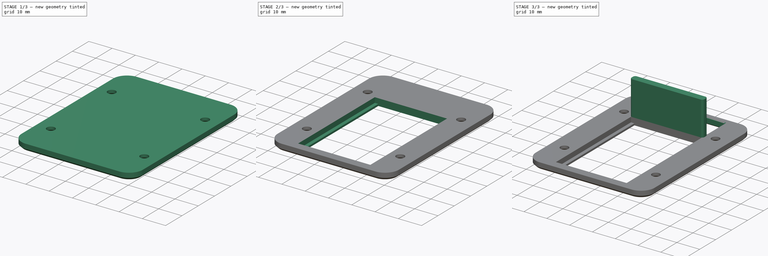
[diagram: build sequence overview — one tinted view per stage of 3, left to right]
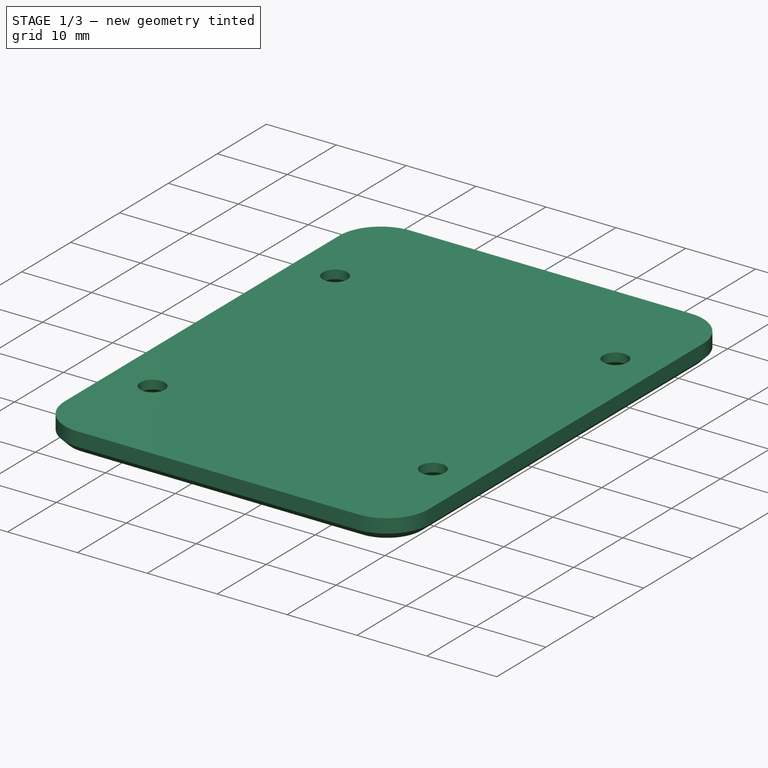
[diagram: stage 1 of 3 — iso view after this stage's code; geometry added in this stage tinted green]
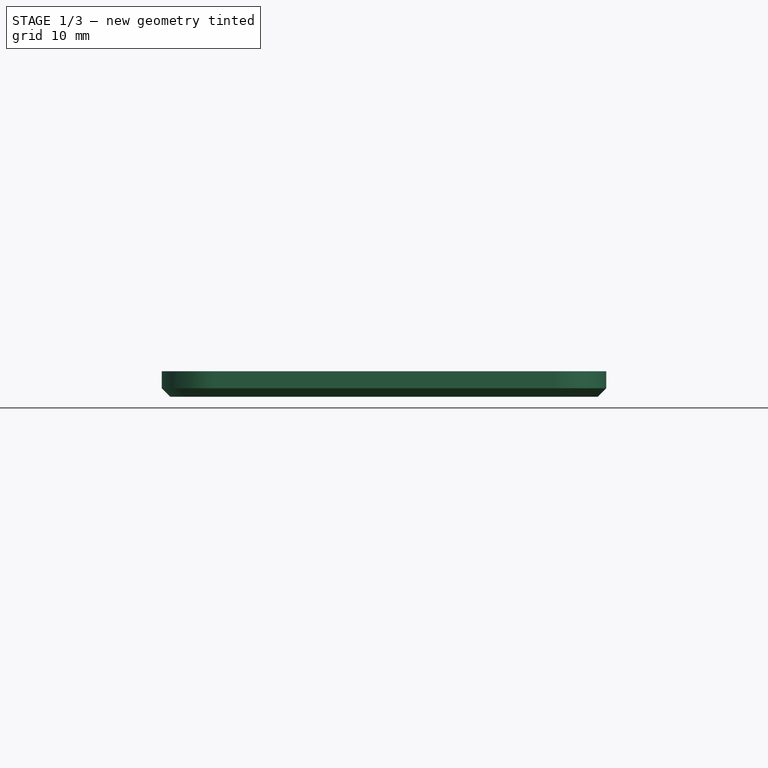
[diagram: stage 1 of 3 — front view after this stage's code; geometry added in this stage tinted green]
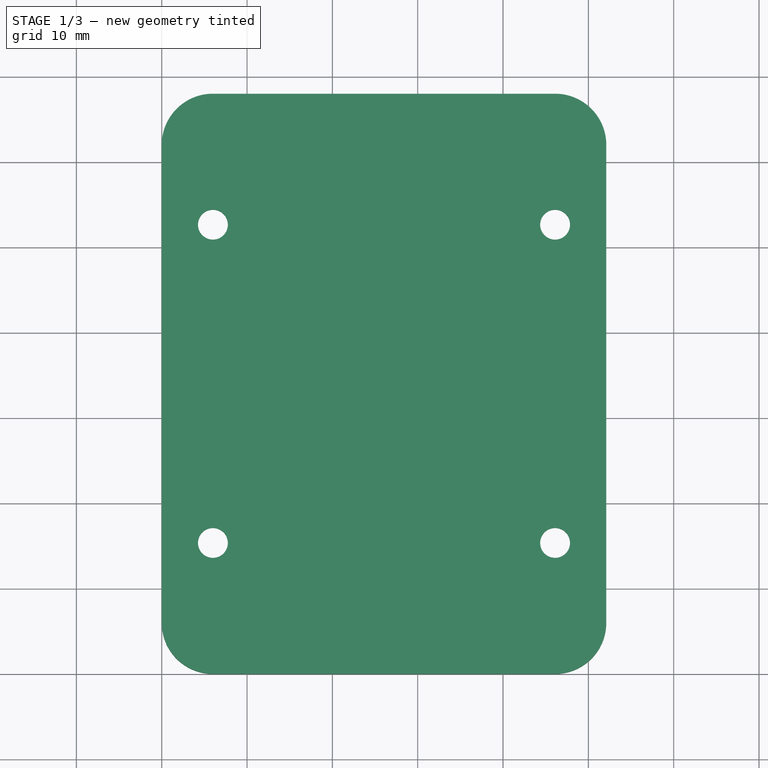
[diagram: stage 1 of 3 — top view after this stage's code; geometry added in this stage tinted green]
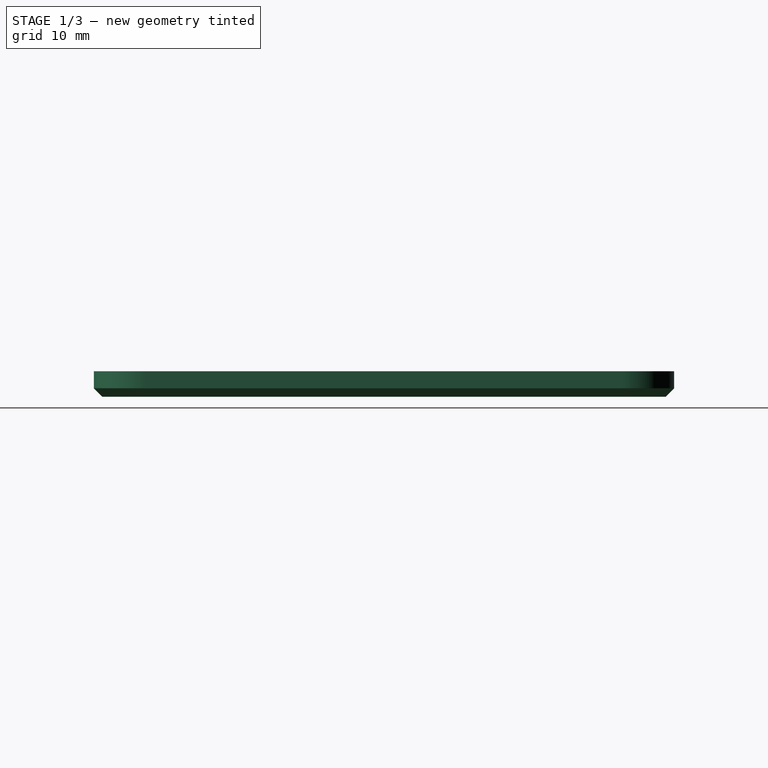
[diagram: stage 1 of 3 — right view after this stage's code; geometry added in this stage tinted green]
FCSTD DOCUMENT  (FreeCAD 1.0R39319 (Git))
Label: power_inlet_IEC320_C14
License: All rights reserved
LicenseURL: https://en.wikipedia.org/wiki/All_rights_reserved
objects: Sketcher::SketchObject×6, PartDesign::Pocket×3, PartDesign::Pad×2, PartDesign::Chamfer×2, Spreadsheet::Sheet×1, PartDesign::Plane×1, PartDesign::Hole×1, PartDesign::Body×1
note: 38 computed .brp shape members not serialized (recipe doc carries the construction recipe); baked Part::Feature solids carry a one-line shape summary decoded from their .brp

FEATURE [Spreadsheet::Sheet] Spreadsheet
  cells = A1='ATX mounting height spacing; B1(AtxMountHeiSpa)=37.3; C1='IEC inlet height; D1(IecInletHei)=47; E1='Cable hole height; F1(CableHoleHei)=12; G1='Cable hole wall thickness; H1(CableHoleWallThi)=3; A2='ATX mounting width spacing; B2(AtxMountWidSpa)=40.1; C2='IEC inlet width; D2(IecInletWid)=28; E2='Cable hole width; F2(CableHoleWid)=30; G2='Cable hole wall width; H2(CableHoleWallWid)=32; A3='ATX mounting hole diameter; B3(AtxMountHoleDia)=3.5; C3='IEC inlet keepout; D3(IecInletKeep)=1.5; E3='Cable chamfer; F3(CableHoleCha)=0.5; G3='Cable hole wall Depth; H3(CableHoleWallDep)=15; A4='ATX mounting hole chamfer; B4(AtxMountHoleCha)=7; C4='IEC inlet Plate Thickness; D4(IecInletPlateThi)=0.8; G4='Cable hole wall chamfer; H4(CableHoleWallCha)=1; A5='ATX plate wall width; B5(AtxPlateWallWid)=6; C5='IEC inlet X offset; D5(IecInletXOff)=0; E5='Cable hole X offset; F5(CableHoleXOff)=0; A6='ATX plate wall thickness; B6(AtxPlateWallThi)=3; C6='IEC inlet Y offset; D6(IecInletYOff)=-7; E6='Cable hole Y offset; F6(CableHoleYOff)=26; A7='ATX hole height; B7(AtxHoleHei)=68; A8='Plate Chamfer; B8(PlateCha)=1; A10='Calculations; A11='Total plate width; B11(TotalPlateWid)==AtxMountWidSpa + AtxPlateWallWid * 2; C11='IEC pocket height; D11(IecPocketHei)==IecInletHei; A12='Total plate height; B12(TotalPlateHei)==AtxHoleHei; C12='IEC pocket width; D12(IecPocketWid)==IecInletWid + IecInletKeep * 2; C13='IEC pocket depth; D13(IecPocketDep)==AtxPlateWallThi - IecInletPlateThi
FEATURE [Sketcher::SketchObject] Sketch
  ArcFitTolerance = 1e-06
  AttachmentSupport = -> [XY_Plane]
  FullyConstrained = true
  MakeInternals = false
  MapMode = 5
  expr: Constraints[23] = Spreadsheet.AtxPlateWallWid
  expr: Constraints[5] = Spreadsheet.TotalPlateWid
  expr: Constraints[6] = Spreadsheet.TotalPlateHei
  sketch-geometry (12):
    g0: LineSegment StartX=6 StartY=0 StartZ=0 EndX=46.1 EndY=0 EndZ=0
    g1: LineSegment StartX=52.1 StartY=6 StartZ=0 EndX=52.1 EndY=62 EndZ=0
    g2: LineSegment StartX=46.1 StartY=68 StartZ=0 EndX=6 EndY=68 EndZ=0
    g3: LineSegment StartX=0 StartY=62 StartZ=0 EndX=0 EndY=6 EndZ=0
    g4: ArcOfCircle CenterX=6 CenterY=6 CenterZ=0 NormalX=0 NormalY=0 NormalZ=1 AngleXU=0 Radius=6 StartAngle=3.14159 EndAngle=4.71239
    g5: GeomPoint [constr] X=0 Y=0 Z=0
    g6: ArcOfCircle CenterX=6 CenterY=62 CenterZ=0 NormalX=0 NormalY=0 NormalZ=1 AngleXU=0 Radius=6 StartAngle=1.5708 EndAngle=3.14159
    g7: GeomPoint [constr] X=0 Y=68 Z=0
    g8: ArcOfCircle CenterX=46.1 CenterY=62 CenterZ=0 NormalX=0 NormalY=0 NormalZ=1 AngleXU=0 Radius=6 StartAngle=0 EndAngle=1.5708
    g9: GeomPoint [constr] X=52.1 Y=68 Z=0
    g10: ArcOfCircle CenterX=46.1 CenterY=6 CenterZ=0 NormalX=0 NormalY=0 NormalZ=1 AngleXU=0 Radius=6 StartAngle=4.71239 EndAngle=6.28319
    g11: GeomPoint [constr] X=52.1 Y=0 Z=0
  constraints (27):
    c: Horizontal(g0)
    c: Horizontal(g2)
    c: Vertical(g1)
    c: Vertical(g3)
    c: Coincident(g5,g-1)
    c: DistanceX(g5,g11) = 52.1
    c: DistanceY(g5,g7) = 68
    c: PointOnObject(g5,g3)
    c: PointOnObject(g5,g0)
    c: Tangent(g3,g4) = -1.5708
    c: Tangent(g0,g4) = -1.5708
    c: PointOnObject(g7,g2)
    c: PointOnObject(g7,g3)
    c: Tangent(g2,g6) = -1.5708
    c: Tangent(g3,g6) = -1.5708
    c: PointOnObject(g9,g1)
    c: PointOnObject(g9,g2)
    c: Tangent(g1,g8) = -1.5708
    c: Tangent(g2,g8) = -1.5708
    c: PointOnObject(g11,g0)
    c: PointOnObject(g11,g1)
    c: Tangent(g0,g10) = -1.5708
    c: Tangent(g1,g10) = -1.5708
    c: DistanceY(g0,g4) = 6
    c: Vertical(g4,g6)
    c: Horizontal(g4,g10)
    c: Vertical(g10,g8)
FEATURE [PartDesign::Pad] Pad  label="MainPlate"
  Direction = (0,0,1)
  Length = 3
  Length2 = 10
  Profile = -> Sketch
  ReferenceAxis = -> Sketch [N_Axis]
  Refine = true
  Suppressed = false
  Type = 0
  expr: Length = Spreadsheet.AtxPlateWallThi
FEATURE [PartDesign::Plane] DatumPlane  label="TopPlane"
  AttachmentOffset = pos=(0,0,3) rot=(0,0,1;0rad)
  AttachmentSupport = -> [XY_Plane]
  Length = 94.0355
  MapMode = 2
  Placement = pos=(0,0,3) rot=(0,0,1;0rad)
  ResizeMode = 0
  Width = 109.936
  expr: .AttachmentOffset.Base.z = Spreadsheet.AtxPlateWallThi
FEATURE [Sketcher::SketchObject] Sketch001
  ArcFitTolerance = 1e-06
  AttachmentSupport = -> [XY_Plane]
  FullyConstrained = true
  MakeInternals = false
  MapMode = 5
  expr: Constraints[10] = Spreadsheet.TotalPlateHei / 2
  expr: Constraints[11] = Spreadsheet.AtxMountWidSpa
  expr: Constraints[12] = Spreadsheet.AtxMountHeiSpa
  expr: Constraints[9] = Spreadsheet.TotalPlateWid / 2
  sketch-geometry (9):
    g0: LineSegment [constr] StartX=46.1 StartY=15.35 StartZ=0 EndX=46.1 EndY=52.65 EndZ=0
    g1: LineSegment [constr] StartX=46.1 StartY=52.65 StartZ=0 EndX=6 EndY=52.65 EndZ=0
    g2: LineSegment [constr] StartX=6 StartY=52.65 StartZ=0 EndX=6 EndY=15.35 EndZ=0
    g3: LineSegment [constr] StartX=6 StartY=15.35 StartZ=0 EndX=46.1 EndY=15.35 EndZ=0
    g4: GeomPoint [constr] X=26.05 Y=34 Z=0
    g5: Circle CenterX=6 CenterY=52.65 CenterZ=0 NormalX=0 NormalY=0 NormalZ=1 AngleXU=0 Radius=0.5
    g6: Circle CenterX=46.1 CenterY=52.65 CenterZ=0 NormalX=0 NormalY=0 NormalZ=1 AngleXU=0 Radius=0.5
    g7: Circle CenterX=46.1 CenterY=15.35 CenterZ=0 NormalX=0 NormalY=0 NormalZ=1 AngleXU=0 Radius=0.5
    g8: Circle CenterX=6 CenterY=15.35 CenterZ=0 NormalX=0 NormalY=0 NormalZ=1 AngleXU=0 Radius=0.5
  constraints (21):
    c: Coincident(g0,g1)
    c: Coincident(g1,g2)
    c: Coincident(g2,g3)
    c: Coincident(g3,g0)
    c: Vertical(g0)
    c: Vertical(g2)
    c: Horizontal(g1)
    c: Horizontal(g3)
    c: Symmetric(g2,g0,g4)
    c: DistanceX(g-1,g4) = 26.05
    c: DistanceY(g-1,g4) = 34
    c: DistanceX(g1,g0) = 40.1
    c: DistanceY(g2,g1) = 37.3
    c: Coincident(g6,g0)
    c: Coincident(g7,g0)
    c: Coincident(g8,g2)
    c: Coincident(g5,g1)
    c: Diameter(g5) = 1
    c: Equal(g5,g6)
    c: Equal(g5,g8)
    c: Equal(g5,g7)
FEATURE [PartDesign::Hole] Hole  label="MountingHoles"
  BaseFeature = -> Pad
  CustomThreadClearance = 0
  Depth = 164.54
  DepthType = 1
  Diameter = 3.5
  DrillForDepth = false
  DrillPoint = 1
  DrillPointAngle = 118
  HoleCutCountersinkAngle = 90
  HoleCutCustomValues = false
  HoleCutDepth = 0
  HoleCutDiameter = 7
  HoleCutType = 2
  ModelThread = false
  Profile = -> Sketch001
  Refine = true
  Reversed = true
  Suppressed = false
  Tapered = false
  TaperedAngle = 90
  ThreadClass = 0
  ThreadDepth = 164.54
  ThreadDepthType = 0
  ThreadDirection = 0
  ThreadFit = 0
  ThreadSize = 0
  ThreadType = 0
  Threaded = false
  UseCustomThreadClearance = false
  expr: Diameter = Spreadsheet.AtxMountHoleDia
  expr: HoleCutDiameter = Spreadsheet.AtxMountHoleCha
FEATURE [PartDesign::Chamfer] Chamfer
  Angle = 45
  Base = -> Hole [Edge12]
  BaseFeature = -> Hole
  ChamferType = 0
  FlipDirection = false
  Refine = true
  Size = 1
  Size2 = 1
  SupportTransform = false
  Suppressed = false
  UseAllEdges = false
  expr: Size = Spreadsheet.PlateCha
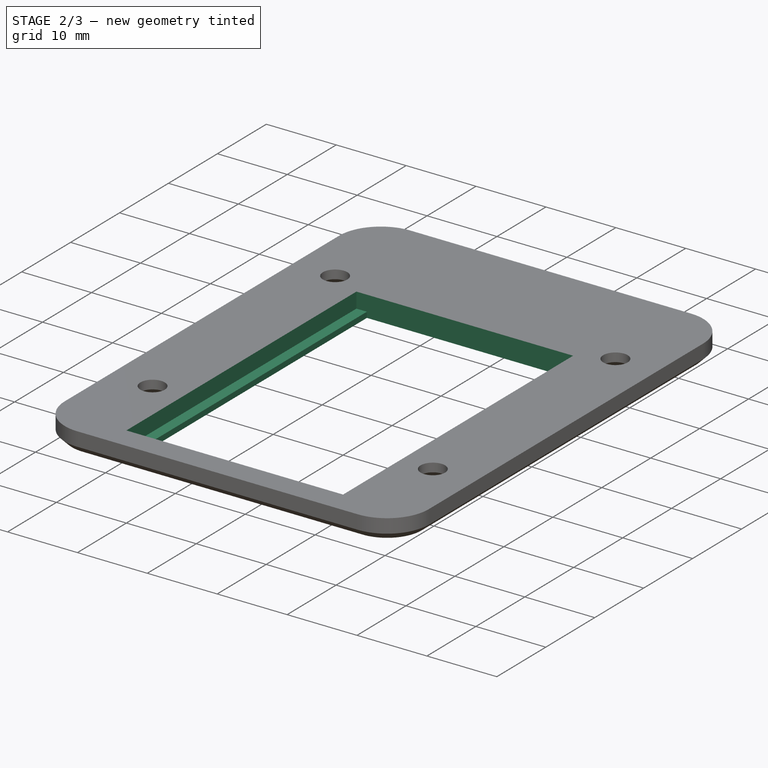
[diagram: stage 2 of 3 — iso view after this stage's code; geometry added in this stage tinted green]
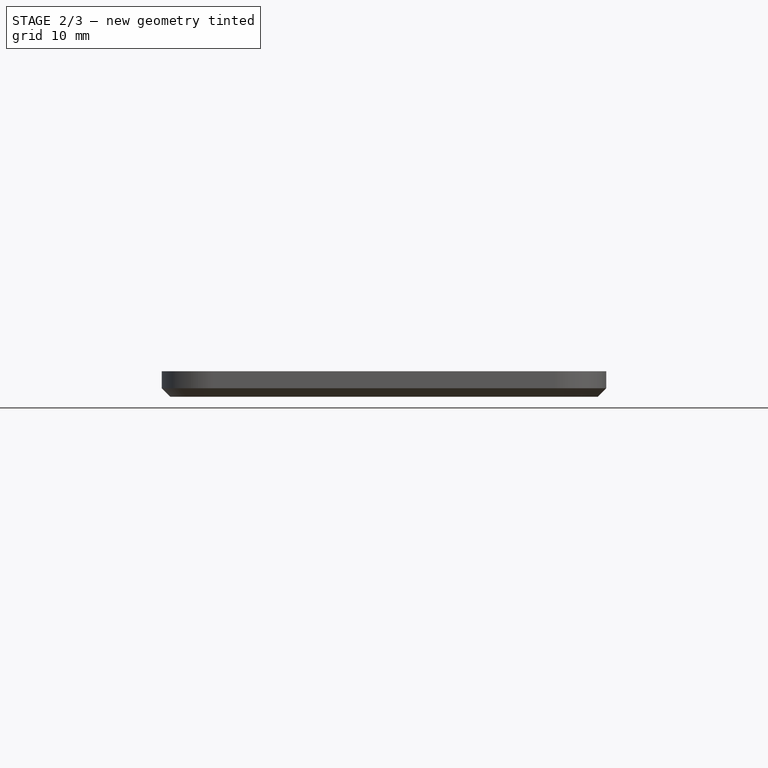
[diagram: stage 2 of 3 — front view after this stage's code; geometry added in this stage tinted green]
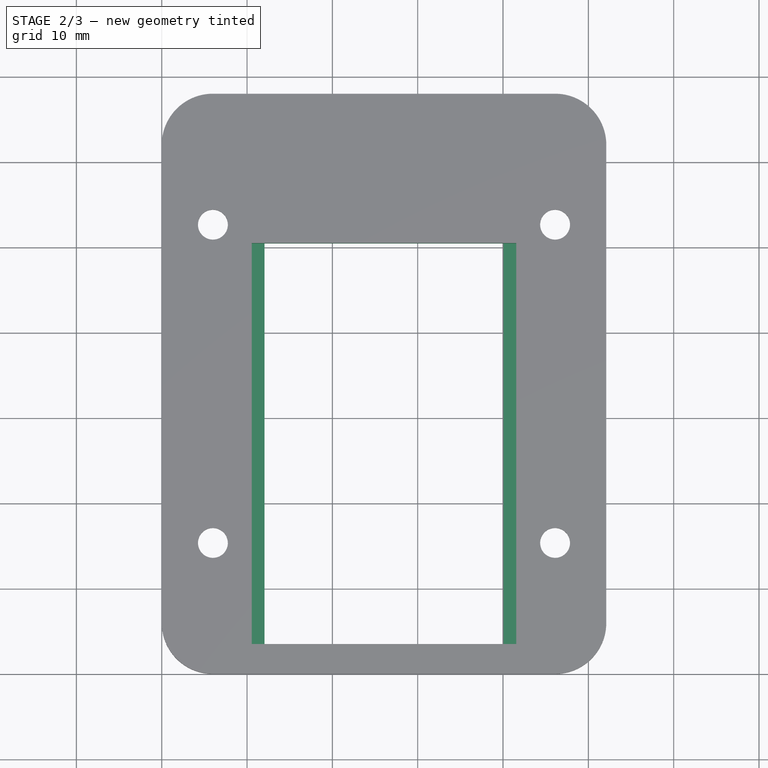
[diagram: stage 2 of 3 — top view after this stage's code; geometry added in this stage tinted green]
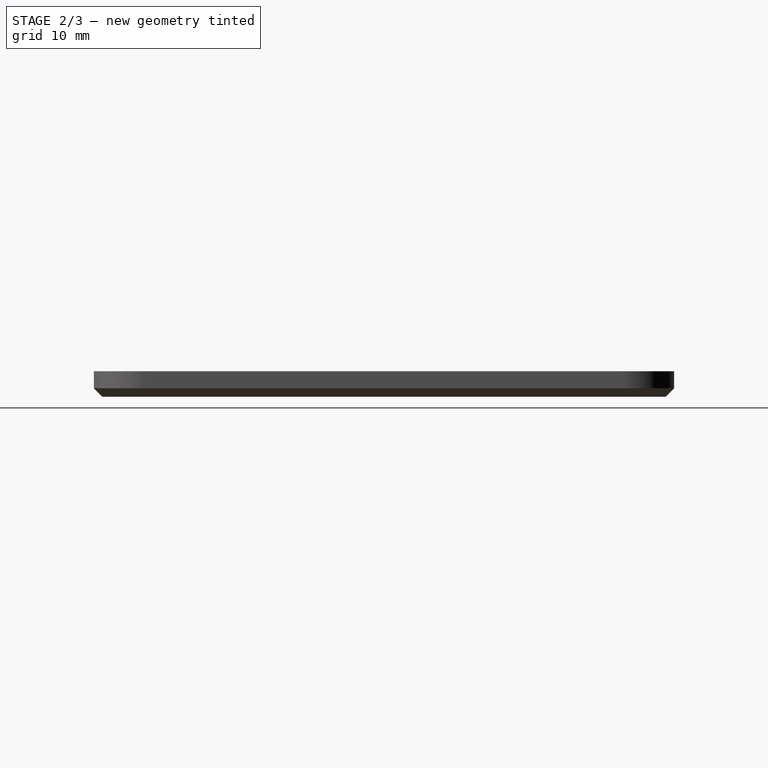
[diagram: stage 2 of 3 — right view after this stage's code; geometry added in this stage tinted green]
FEATURE [Sketcher::SketchObject] Sketch002
  ArcFitTolerance = 1e-06
  AttachmentSupport = -> [DatumPlane]
  FullyConstrained = true
  MakeInternals = false
  MapMode = 5
  Placement = pos=(0,0,3) rot=(0,0,1;0rad)
  expr: Constraints[0] = Spreadsheet.TotalPlateWid / 2
  expr: Constraints[11] = Spreadsheet.IecInletYOff
  expr: Constraints[12] = Spreadsheet.IecInletXOff
  expr: Constraints[13] = Spreadsheet.IecPocketHei
  expr: Constraints[14] = Spreadsheet.IecPocketWid
  expr: Constraints[1] = Spreadsheet.TotalPlateHei / 2
  sketch-geometry (6):
    g0: GeomPoint [constr] X=26.05 Y=34 Z=0
    g1: LineSegment StartX=10.55 StartY=3.5 StartZ=0 EndX=10.55 EndY=50.5 EndZ=0
    g2: LineSegment StartX=10.55 StartY=50.5 StartZ=0 EndX=41.55 EndY=50.5 EndZ=0
    g3: LineSegment StartX=41.55 StartY=50.5 StartZ=0 EndX=41.55 EndY=3.5 EndZ=0
    g4: LineSegment StartX=41.55 StartY=3.5 StartZ=0 EndX=10.55 EndY=3.5 EndZ=0
    g5: GeomPoint [constr] X=26.05 Y=27 Z=0
  constraints (15):
    c: DistanceX(g-1,g0) = 26.05
    c: DistanceY(g-1,g0) = 34
    c: Coincident(g1,g2)
    c: Coincident(g2,g3)
    c: Coincident(g3,g4)
    c: Coincident(g4,g1)
    c: Vertical(g1)
    c: Vertical(g3)
    c: Horizontal(g2)
    c: Horizontal(g4)
    c: Symmetric(g3,g1,g5)
    c: DistanceY(g0,g5) = -7
    c: DistanceX(g0,g5) = 0
    c: DistanceY(g1,g1) = 47
    c: DistanceX(g4,g4) = 31
FEATURE [PartDesign::Pocket] Pocket  label="IecGrabPlate"
  BaseFeature = -> Chamfer
  Direction = (0,0,-1)
  Length = 2.2
  Length2 = 5
  Profile = -> Sketch002
  ReferenceAxis = -> Sketch002 [N_Axis]
  Refine = true
  Suppressed = false
  Type = 0
  expr: Length = Spreadsheet.IecPocketDep
FEATURE [Sketcher::SketchObject] Sketch003
  ArcFitTolerance = 1e-06
  AttachmentSupport = -> [DatumPlane]
  FullyConstrained = true
  MakeInternals = false
  MapMode = 5
  Placement = pos=(0,0,3) rot=(0,0,1;0rad)
  expr: Constraints[0] = Spreadsheet.TotalPlateWid / 2
  expr: Constraints[11] = Spreadsheet.IecInletYOff
  expr: Constraints[12] = Spreadsheet.IecInletXOff
  expr: Constraints[13] = Spreadsheet.IecInletHei
  expr: Constraints[14] = Spreadsheet.IecInletWid
  expr: Constraints[1] = Spreadsheet.TotalPlateHei / 2
  sketch-geometry (6):
    g0: GeomPoint X=26.05 Y=34 Z=0
    g1: LineSegment StartX=12.05 StartY=3.5 StartZ=0 EndX=12.05 EndY=50.5 EndZ=0
    g2: LineSegment StartX=12.05 StartY=50.5 StartZ=0 EndX=40.05 EndY=50.5 EndZ=0
    g3: LineSegment StartX=40.05 StartY=50.5 StartZ=0 EndX=40.05 EndY=3.5 EndZ=0
    g4: LineSegment StartX=40.05 StartY=3.5 StartZ=0 EndX=12.05 EndY=3.5 EndZ=0
    g5: GeomPoint [constr] X=26.05 Y=27 Z=0
  constraints (15):
    c: DistanceX(g-1,g0) = 26.05
    c: DistanceY(g-1,g0) = 34
    c: Coincident(g1,g2)
    c: Coincident(g2,g3)
    c: Coincident(g3,g4)
    c: Coincident(g4,g1)
    c: Vertical(g1)
    c: Vertical(g3)
    c: Horizontal(g2)
    c: Horizontal(g4)
    c: Symmetric(g3,g1,g5)
    c: DistanceY(g0,g5) = -7
    c: DistanceX(g0,g5) = 0
    c: DistanceY(g1,g1) = 47
    c: DistanceX(g4,g4) = 28
FEATURE [PartDesign::Pocket] Pocket001  label="IecCutout"
  BaseFeature = -> Pocket
  Direction = (0,0,-1)
  Length = 5
  Length2 = 5
  Profile = -> Sketch003
  ReferenceAxis = -> Sketch003 [N_Axis]
  Refine = true
  Suppressed = false
  Type = 1
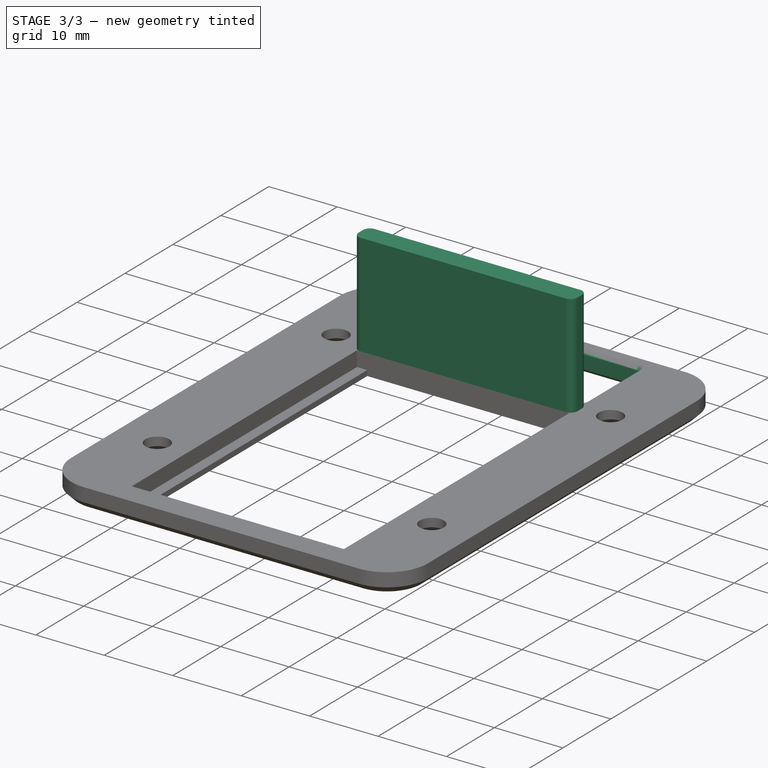
[diagram: stage 3 of 3 — iso view after this stage's code; geometry added in this stage tinted green]
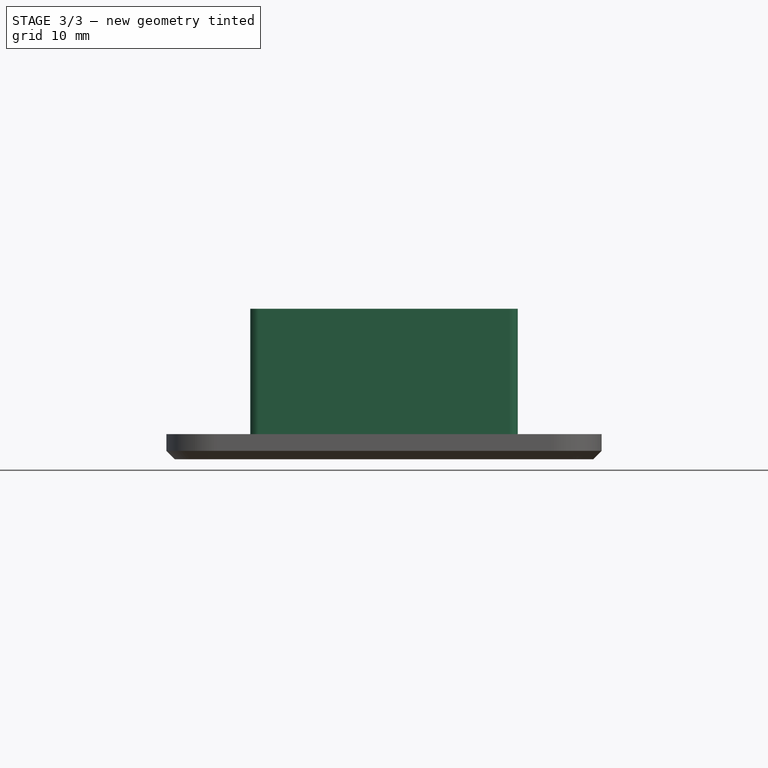
[diagram: stage 3 of 3 — front view after this stage's code; geometry added in this stage tinted green]
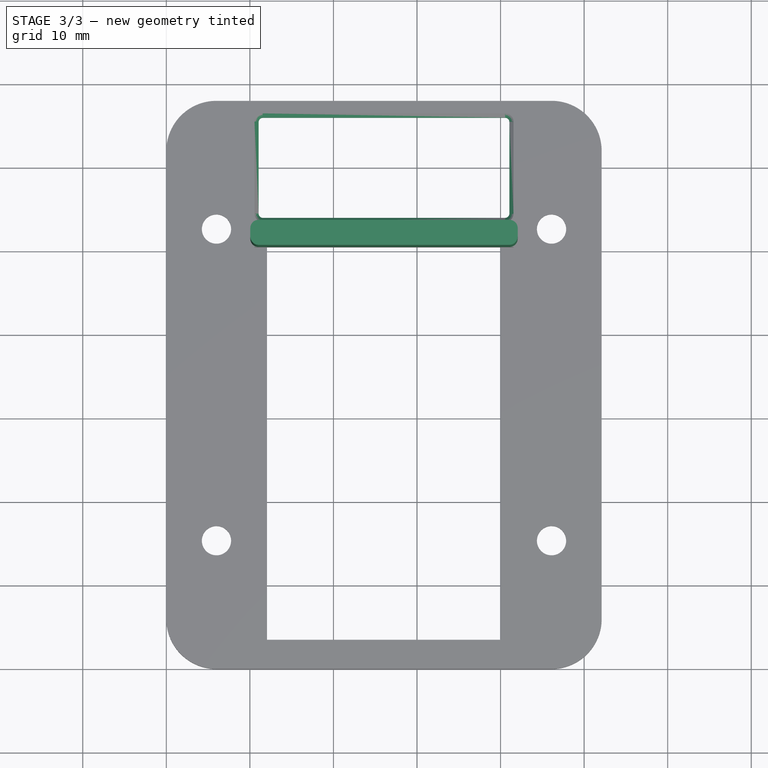
[diagram: stage 3 of 3 — top view after this stage's code; geometry added in this stage tinted green]
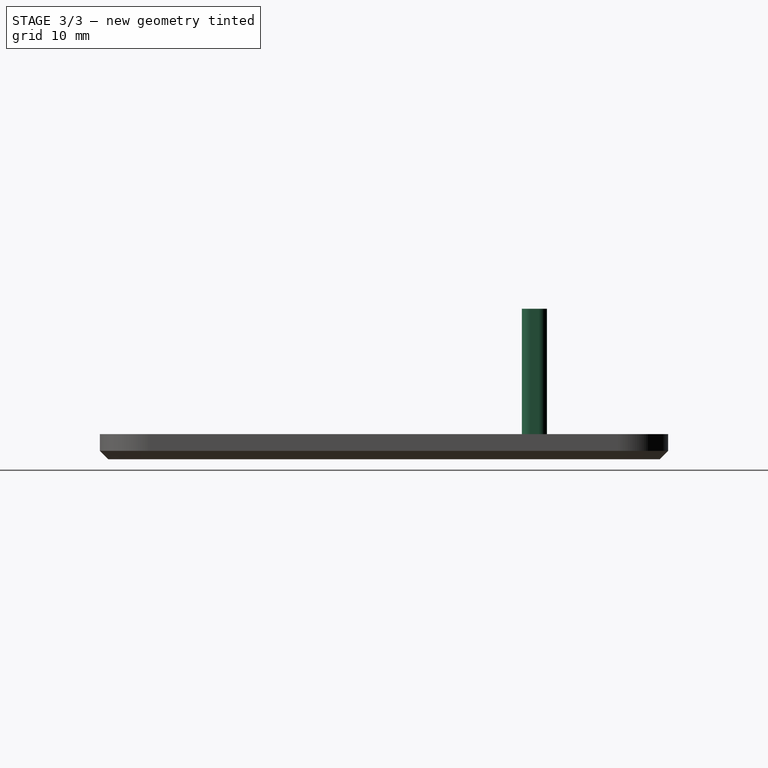
[diagram: stage 3 of 3 — right view after this stage's code; geometry added in this stage tinted green]
FEATURE [Sketcher::SketchObject] Sketch004
  ArcFitTolerance = 1e-06
  AttachmentSupport = -> [DatumPlane]
  FullyConstrained = true
  MakeInternals = false
  MapMode = 5
  Placement = pos=(0,0,3) rot=(0,0,1;0rad)
  expr: Constraints[10] = Spreadsheet.CableHoleWid
  expr: Constraints[27] = Spreadsheet.CableHoleCha
  expr: Constraints[5] = Spreadsheet.TotalPlateHei / 2
  expr: Constraints[6] = Spreadsheet.TotalPlateWid / 2
  expr: Constraints[7] = Spreadsheet.CableHoleYOff
  expr: Constraints[8] = Spreadsheet.CableHoleXOff
  expr: Constraints[9] = Spreadsheet.CableHoleHei
  sketch-geometry (14):
    g0: GeomPoint X=26.05 Y=34 Z=0
    g1: LineSegment StartX=11.05 StartY=54.5 StartZ=0 EndX=11.05 EndY=65.5 EndZ=0
    g2: LineSegment StartX=11.55 StartY=66 StartZ=0 EndX=40.55 EndY=66 EndZ=0
    g3: LineSegment StartX=41.05 StartY=65.5 StartZ=0 EndX=41.05 EndY=54.5 EndZ=0
    g4: LineSegment StartX=40.55 StartY=54 StartZ=0 EndX=11.55 EndY=54 EndZ=0
    g5: GeomPoint [constr] X=26.05 Y=60 Z=0
    g6: ArcOfCircle CenterX=11.55 CenterY=65.5 CenterZ=0 NormalX=0 NormalY=0 NormalZ=1 AngleXU=0 Radius=0.5 StartAngle=1.5708 EndAngle=3.14159
    g7: GeomPoint [constr] X=11.05 Y=66 Z=0
    g8: ArcOfCircle CenterX=40.55 CenterY=65.5 CenterZ=0 NormalX=0 NormalY=0 NormalZ=1 AngleXU=0 Radius=0.5 StartAngle=6.5e-15 EndAngle=1.5708
    g9: GeomPoint [constr] X=41.05 Y=66 Z=0
    g10: ArcOfCircle CenterX=40.55 CenterY=54.5 CenterZ=0 NormalX=0 NormalY=0 NormalZ=1 AngleXU=0 Radius=0.5 StartAngle=4.71239 EndAngle=6.28319
    g11: GeomPoint [constr] X=41.05 Y=54 Z=0
    g12: ArcOfCircle CenterX=11.55 CenterY=54.5 CenterZ=0 NormalX=0 NormalY=0 NormalZ=1 AngleXU=0 Radius=0.5 StartAngle=3.14159 EndAngle=4.71239
    g13: GeomPoint [constr] X=11.05 Y=54 Z=0
  constraints (31):
    c: Vertical(g1)
    c: Vertical(g3)
    c: Horizontal(g2)
    c: Horizontal(g4)
    c: Symmetric(g9,g13,g5)
    c: DistanceY(g-1,g0) = 34
    c: DistanceX(g-1,g0) = 26.05
    c: DistanceY(g0,g5) = 26
    c: DistanceX(g5,g0) = 0
    c: DistanceY(g13,g7) = 12
    c: DistanceX(g13,g11) = 30
    c: PointOnObject(g7,g2)
    c: PointOnObject(g7,g1)
    c: Tangent(g2,g6) = 1.5708
    c: Tangent(g1,g6) = 1.5708
    c: PointOnObject(g9,g3)
    c: PointOnObject(g9,g2)
    c: Tangent(g3,g8) = 1.5708
    c: Tangent(g2,g8) = 1.5708
    c: PointOnObject(g11,g3)
    c: PointOnObject(g11,g4)
    c: Tangent(g3,g10) = 1.5708
    c: Tangent(g4,g10) = 1.5708
    c: PointOnObject(g13,g4)
    c: PointOnObject(g13,g1)
    c: Tangent(g4,g12) = 1.5708
    c: Tangent(g1,g12) = 1.5708
    c: DistanceY(g4,g12) = 0.5
    c: Vertical(g12,g6)
    c: Horizontal(g12,g10)
    c: Vertical(g10,g8)
FEATURE [PartDesign::Pocket] Pocket002  label="CableHoleCutout"
  BaseFeature = -> Pocket001
  Direction = (0,0,-1)
  Length = 5
  Length2 = 5
  Profile = -> Sketch004
  ReferenceAxis = -> Sketch004 [N_Axis]
  Refine = true
  Suppressed = false
  Type = 1
FEATURE [PartDesign::Chamfer] Chamfer001  label="CableHoleChamfer"
  Angle = 45
  Base = -> Pocket002 [Edge53,Edge25]
  BaseFeature = -> Pocket002
  ChamferType = 0
  FlipDirection = false
  Refine = true
  Size = 0.5
  Size2 = 1
  SupportTransform = false
  Suppressed = false
  UseAllEdges = false
  expr: Size = Spreadsheet.CableHoleCha
FEATURE [Sketcher::SketchObject] Sketch005
  ArcFitTolerance = 1e-06
  AttachmentSupport = -> [DatumPlane]
  FullyConstrained = true
  MakeInternals = false
  MapMode = 5
  Placement = pos=(0,0,3) rot=(0,0,1;0rad)
  expr: Constraints[10] = Spreadsheet.CableHoleWallThi
  expr: Constraints[27] = Spreadsheet.CableHoleWallCha
  expr: Constraints[6] = Spreadsheet.TotalPlateWid / 2
  expr: Constraints[7] = Spreadsheet.TotalPlateHei / 2 + Spreadsheet.IecInletYOff
  expr: Constraints[8] = Spreadsheet.IecInletHei / 2 + Spreadsheet.AtxPlateWallThi / 2
  expr: Constraints[9] = Spreadsheet.CableHoleWallWid
  sketch-geometry (14):
    g0: GeomPoint X=26.05 Y=27 Z=0
    g1: LineSegment StartX=10.05 StartY=52.5 StartZ=0 EndX=10.05 EndY=51.5 EndZ=0
    g2: LineSegment StartX=11.05 StartY=50.5 StartZ=0 EndX=41.05 EndY=50.5 EndZ=0
    g3: LineSegment StartX=42.05 StartY=51.5 StartZ=0 EndX=42.05 EndY=52.5 EndZ=0
    g4: LineSegment StartX=41.05 StartY=53.5 StartZ=0 EndX=11.05 EndY=53.5 EndZ=0
    g5: GeomPoint [constr] X=26.05 Y=52 Z=0
    g6: ArcOfCircle CenterX=11.05 CenterY=52.5 CenterZ=0 NormalX=0 NormalY=0 NormalZ=1 AngleXU=0 Radius=1 StartAngle=1.5708 EndAngle=3.14159
    g7: GeomPoint [constr] X=10.05 Y=53.5 Z=0
    g8: ArcOfCircle CenterX=41.05 CenterY=52.5 CenterZ=0 NormalX=0 NormalY=0 NormalZ=1 AngleXU=0 Radius=1 StartAngle=2e-16 EndAngle=1.5708
    g9: GeomPoint [constr] X=42.05 Y=53.5 Z=0
    g10: ArcOfCircle CenterX=41.05 CenterY=51.5 CenterZ=0 NormalX=0 NormalY=0 NormalZ=1 AngleXU=0 Radius=1 StartAngle=4.71239 EndAngle=6.28319
    g11: GeomPoint [constr] X=42.05 Y=50.5 Z=0
    g12: ArcOfCircle CenterX=11.05 CenterY=51.5 CenterZ=0 NormalX=0 NormalY=0 NormalZ=1 AngleXU=0 Radius=1 StartAngle=3.14159 EndAngle=4.71239
    g13: GeomPoint [constr] X=10.05 Y=50.5 Z=0
  constraints (31):
    c: Vertical(g1)
    c: Vertical(g3)
    c: Horizontal(g2)
    c: Horizontal(g4)
    c: Symmetric(g11,g7,g5)
    c: Vertical(g5,g0)
    c: DistanceX(g-1,g0) = 26.05
    c: DistanceY(g-1,g0) = 27
    c: DistanceY(g0,g5) = 25
    c: DistanceX(g13,g11) = 32
    c: DistanceY(g13,g7) = 3
    c: PointOnObject(g7,g4)
    c: PointOnObject(g7,g1)
    c: Tangent(g4,g6) = -1.5708
    c: Tangent(g1,g6) = -1.5708
    c: PointOnObject(g9,g4)
    c: PointOnObject(g9,g3)
    c: Tangent(g4,g8) = -1.5708
    c: Tangent(g3,g8) = -1.5708
    c: PointOnObject(g11,g3)
    c: PointOnObject(g11,g2)
    c: Tangent(g3,g10) = -1.5708
    c: Tangent(g2,g10) = -1.5708
    c: PointOnObject(g13,g1)
    c: PointOnObject(g13,g2)
    c: Tangent(g1,g12) = -1.5708
    c: Tangent(g2,g12) = -1.5708
    c: DistanceY(g2,g12) = 1
    c: Vertical(g12,g6)
    c: Horizontal(g12,g10)
    c: Vertical(g10,g8)
FEATURE [PartDesign::Pad] Pad001  label="CableHoleWall"
  BaseFeature = -> Chamfer001
  Direction = (0,0,1)
  Length = 15
  Length2 = 10
  Profile = -> Sketch005
  ReferenceAxis = -> Sketch005 [N_Axis]
  Refine = true
  Suppressed = false
  Type = 0
  expr: Length = Spreadsheet.CableHoleWallDep
FEATURE [PartDesign::Body] Body
  AllowCompound = false
  Group = -> [Sketch,Pad,DatumPlane,Sketch001,Hole,Chamfer,Sketch002,Pocket,Sketch003,Pocket001,Sketch004,Pocket002,Chamfer001,Sketch005,Pad001]
  Origin = -> Origin
  Tip = -> Pad001
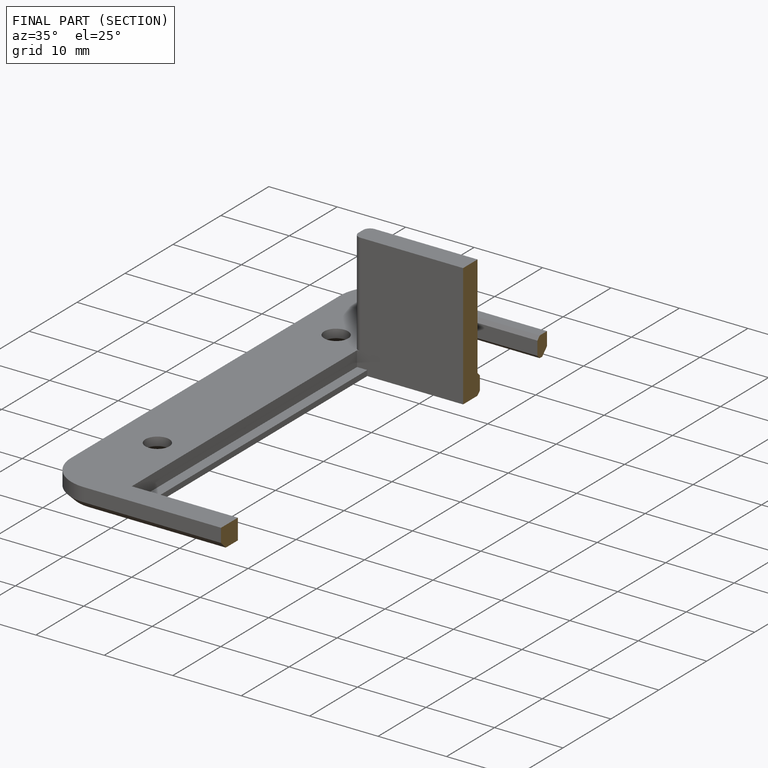
[diagram: finished part — half-section view (interior)]
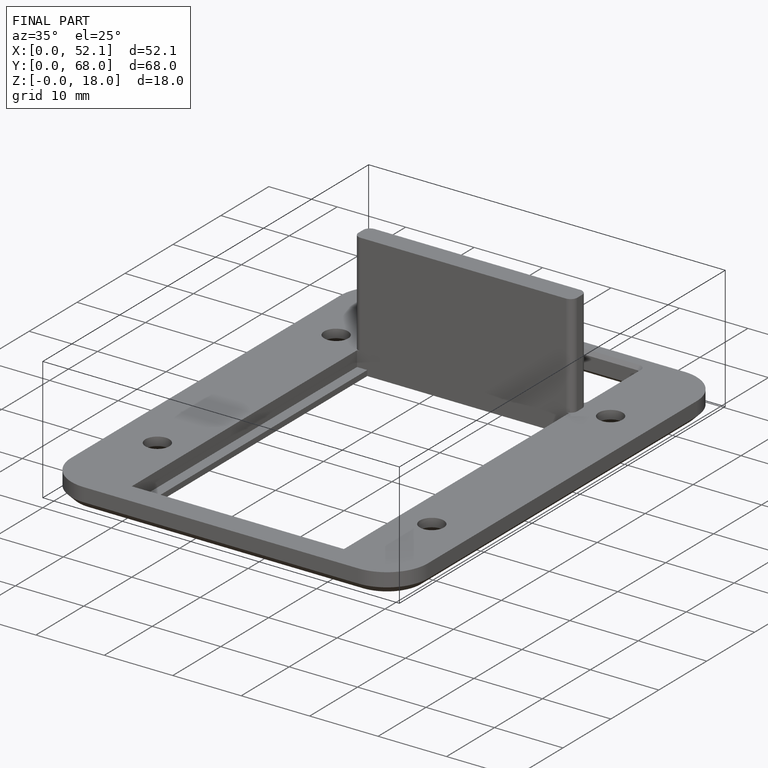
[diagram: finished part — iso view with bounding-box wireframe]
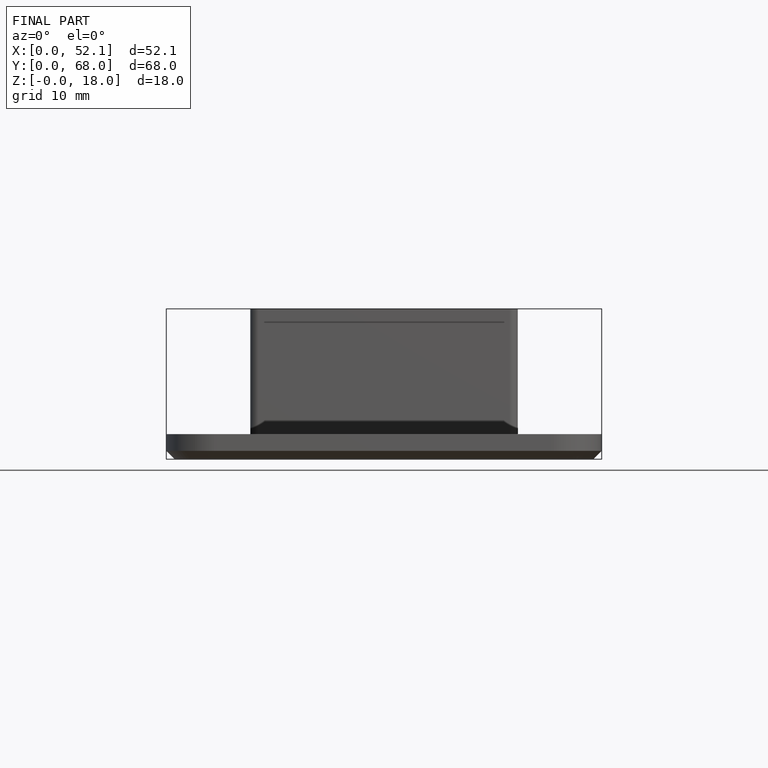
[diagram: finished part — front view with bounding-box wireframe]
